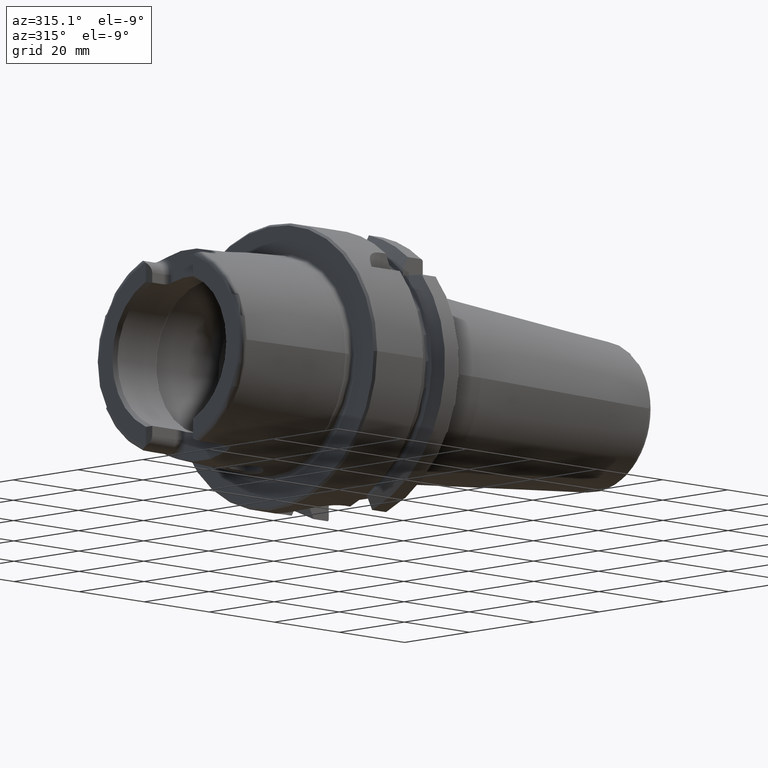
[diagram: clean part render]
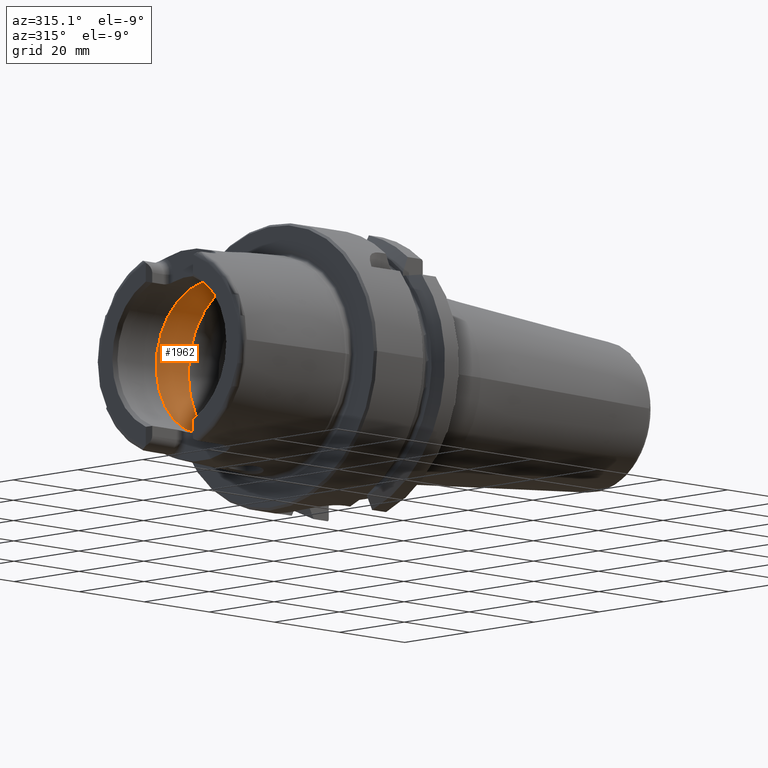
[diagram: same view with one face highlighted and labeled with its STEP entity id]
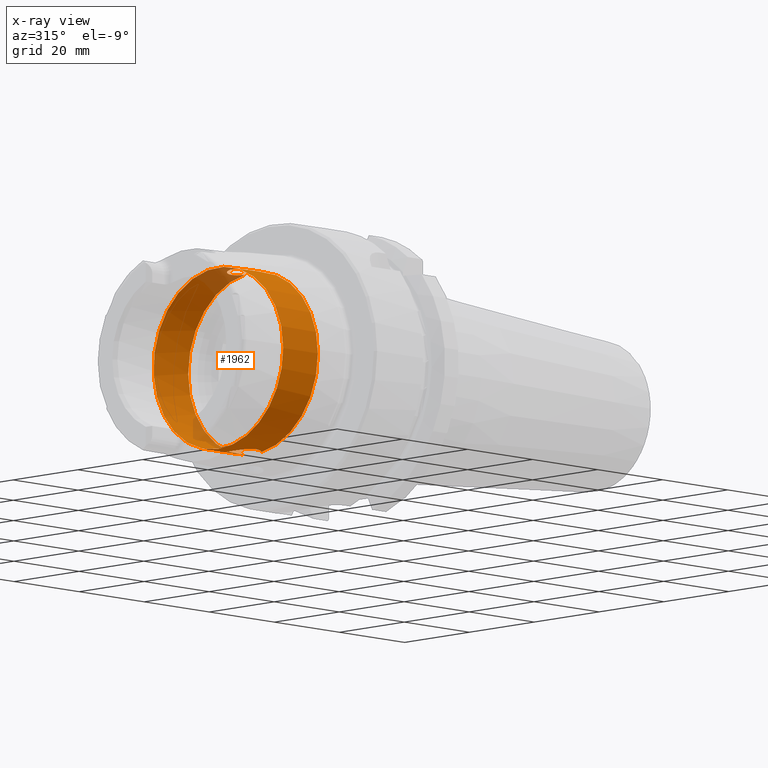
[diagram: x-ray of the same camera — body ghosted, the highlighted face saturated]
A machine part, auxiliary view. The second image highlights one B-rep face of the part: STEP entity #1962.
The next image is the same camera in x-ray: the body ghosted, the highlighted face saturated — about 8% of this face is hidden behind the body in this view.
In plain terms, the highlighted cylindrical surface (bore or boss wall) has radius 20 mm, axis along (-1, 0, 0).
Its self-contained STEP definition (entity closure, byte-faithful):
#50=B_SPLINE_CURVE_WITH_KNOTS('',3,(#3469,#3470,#3471,#3472,#3473,#3474,
#3475,#3476,#3477,#3478,#3479,#3480,#3481,#3482,#3483,#3484,#3485,#3486,
#3487,#3488,#3489,#3490,#3491,#3492,#3493,#3494,#3495,#3496,#3497,#3498,
#3499),.UNSPECIFIED.,.F.,.F.,(4,2,2,2,2,2,2,2,2,2,2,3,2,2,4),(-1.43107314142755,
-1.4161913421645,-1.27456976724955,-1.1329481923346,-0.991326617419658,
-0.849705042504712,-0.708089569336007,-0.566474096167302,-0.424858622998598,
-0.283243149829893,-0.141621574914946,0.,0.141621574914946,0.283243149829893,
0.298124949100151),.UNSPECIFIED.);
#55=B_SPLINE_CURVE_WITH_KNOTS('',3,(#3638,#3639,#3640,#3641,#3642,#3643,
#3644,#3645,#3646,#3647,#3648,#3649,#3650,#3651,#3652,#3653,#3654,#3655,
#3656,#3657,#3658,#3659,#3660,#3661,#3662,#3663,#3664,#3665,#3666,#3667,
#3668),.UNSPECIFIED.,.F.,.F.,(4,2,2,3,2,2,2,2,2,2,2,2,2,2,4),(-0.298124949092949,
-0.283243149829893,-0.141621574914946,0.,0.141621574914946,0.283243149829893,
0.424858622998598,0.566474096167302,0.708089569336007,0.849705042504712,
0.991326617419658,1.1329481923346,1.27456976724955,1.4161913421645,1.43107314143475),
 .UNSPECIFIED.);
#184=CYLINDRICAL_SURFACE('',#2144,20.);
#237=FACE_OUTER_BOUND('',#359,.T.);
#359=EDGE_LOOP('',(#1463,#1464,#1465,#1466,#1467,#1468,#1469,#1470,#1471));
#492=LINE('',#3684,#598);
#598=VECTOR('',#2511,20.);
#699=CIRCLE('',#2145,20.);
#700=CIRCLE('',#2146,20.);
#701=CIRCLE('',#2147,20.);
#702=CIRCLE('',#2148,20.);
#703=CIRCLE('',#2149,20.);
#868=VERTEX_POINT('',#3455);
#869=VERTEX_POINT('',#3468);
#872=VERTEX_POINT('',#3623);
#874=VERTEX_POINT('',#3637);
#875=VERTEX_POINT('',#3681);
#876=VERTEX_POINT('',#3683);
#877=VERTEX_POINT('',#3685);
#1093=EDGE_CURVE('',#869,#868,#50,.T.);
#1099=EDGE_CURVE('',#874,#872,#55,.T.);
#1102=EDGE_CURVE('',#875,#872,#699,.T.);
#1103=EDGE_CURVE('',#875,#876,#492,.T.);
#1104=EDGE_CURVE('',#876,#877,#700,.T.);
#1105=EDGE_CURVE('',#877,#876,#701,.T.);
#1106=EDGE_CURVE('',#869,#875,#702,.T.);
#1107=EDGE_CURVE('',#874,#868,#703,.T.);
#1463=ORIENTED_EDGE('',*,*,#1099,.T.);
#1464=ORIENTED_EDGE('',*,*,#1102,.F.);
#1465=ORIENTED_EDGE('',*,*,#1103,.T.);
#1466=ORIENTED_EDGE('',*,*,#1104,.T.);
#1467=ORIENTED_EDGE('',*,*,#1105,.T.);
#1468=ORIENTED_EDGE('',*,*,#1103,.F.);
#1469=ORIENTED_EDGE('',*,*,#1106,.F.);
#1470=ORIENTED_EDGE('',*,*,#1093,.T.);
#1471=ORIENTED_EDGE('',*,*,#1107,.F.);
#1962=ADVANCED_FACE('',(#237),#184,.F.);
#2144=AXIS2_PLACEMENT_3D('',#3680,#2507,#2508);
#2145=AXIS2_PLACEMENT_3D('',#3682,#2509,#2510);
#2146=AXIS2_PLACEMENT_3D('',#3686,#2512,#2513);
#2147=AXIS2_PLACEMENT_3D('',#3687,#2514,#2515);
#2148=AXIS2_PLACEMENT_3D('',#3688,#2516,#2517);
#2149=AXIS2_PLACEMENT_3D('',#3689,#2518,#2519);
#2507=DIRECTION('center_axis',(-1.,0.,0.));
#2508=DIRECTION('ref_axis',(0.,1.,0.));
#2509=DIRECTION('center_axis',(-1.,0.,0.));
#2510=DIRECTION('ref_axis',(0.,0.,1.));
#2511=DIRECTION('',(-1.,0.,0.));
#2512=DIRECTION('center_axis',(-1.,0.,0.));
#2513=DIRECTION('ref_axis',(0.,0.,1.));
#2514=DIRECTION('center_axis',(-1.,0.,0.));
#2515=DIRECTION('ref_axis',(0.,0.,1.));
#2516=DIRECTION('center_axis',(-1.,0.,0.));
#2517=DIRECTION('ref_axis',(0.,0.,1.));
#2518=DIRECTION('center_axis',(-1.,0.,0.));
#2519=DIRECTION('ref_axis',(0.,0.,1.));
#3455=CARTESIAN_POINT('',(-6.2449979983984,2.54410376580264,-19.8375284758165));
#3468=CARTESIAN_POINT('',(-6.2449979983984,-2.54410376580264,-19.8375284758165));
#3469=CARTESIAN_POINT('Ctrl Pts',(-6.2449979983984,-2.54410376580264,-19.8375284758165));
#3470=CARTESIAN_POINT('Ctrl Pts',(-6.27894943420456,-2.58086966932454,-19.8328133585216));
#3471=CARTESIAN_POINT('Ctrl Pts',(-6.31342869219743,-2.61672955109653,-19.8281105439642));
#3472=CARTESIAN_POINT('Ctrl Pts',(-6.68067160381732,-2.98397246271642,-19.7789868876592));
#3473=CARTESIAN_POINT('Ctrl Pts',(-7.10159661632629,-3.27238367725626,-19.731429741537));
#3474=CARTESIAN_POINT('Ctrl Pts',(-8.0251754070192,-3.65542701546408,-19.6640704965084));
#3475=CARTESIAN_POINT('Ctrl Pts',(-8.52792808361685,-3.75,-19.6452920568771));
#3476=CARTESIAN_POINT('Ctrl Pts',(-9.47207191638316,-3.75,-19.6452920568771));
#3477=CARTESIAN_POINT('Ctrl Pts',(-9.97482459298081,-3.65542701546408,-19.6640704965084));
#3478=CARTESIAN_POINT('Ctrl Pts',(-10.8984033836737,-3.27238367725626,-19.731429741537));
#3479=CARTESIAN_POINT('Ctrl Pts',(-11.3193283961827,-2.98397246271642,-19.7789868876592));
#3480=CARTESIAN_POINT('Ctrl Pts',(-11.9839581446669,-2.31934271423217,-19.8678900149943));
#3481=CARTESIAN_POINT('Ctrl Pts',(-12.2723805817074,-1.89841159537053,-19.9150796801946));
#3482=CARTESIAN_POINT('Ctrl Pts',(-12.6554320620407,-0.974811677040414,
-19.9815942165963));
#3483=CARTESIAN_POINT('Ctrl Pts',(-12.75,-0.472051577229017,-20.));
#3484=CARTESIAN_POINT('Ctrl Pts',(-12.75,0.472051577229015,-20.));
#3485=CARTESIAN_POINT('Ctrl Pts',(-12.6554320620407,0.974811677040408,-19.9815942165963));
#3486=CARTESIAN_POINT('Ctrl Pts',(-12.2723805817074,1.89841159537052,-19.9150796801946));
#3487=CARTESIAN_POINT('Ctrl Pts',(-11.9839581446669,2.31934271423217,-19.8678900149943));
#3488=CARTESIAN_POINT('Ctrl Pts',(-11.3193283961827,2.98397246271642,-19.7789868876592));
#3489=CARTESIAN_POINT('Ctrl Pts',(-10.8984033836737,3.27238367725626,-19.731429741537));
#3490=CARTESIAN_POINT('Ctrl Pts',(-9.97482459298081,3.65542701546408,-19.6640704965084));
#3491=CARTESIAN_POINT('Ctrl Pts',(-9.47207191638316,3.75,-19.6452920568771));
#3492=CARTESIAN_POINT('Ctrl Pts',(-9.,3.75,-19.6452920568771));
#3493=CARTESIAN_POINT('Ctrl Pts',(-8.52792808361685,3.75,-19.6452920568771));
#3494=CARTESIAN_POINT('Ctrl Pts',(-8.0251754070192,3.65542701546408,-19.6640704965084));
#3495=CARTESIAN_POINT('Ctrl Pts',(-7.10159661632629,3.27238367725626,-19.731429741537));
#3496=CARTESIAN_POINT('Ctrl Pts',(-6.68067160381732,2.98397246271642,-19.7789868876592));
#3497=CARTESIAN_POINT('Ctrl Pts',(-6.31342869218053,2.61672955107963,-19.8281105439665));
#3498=CARTESIAN_POINT('Ctrl Pts',(-6.27894943419011,2.5808696693089,-19.8328133585236));
#3499=CARTESIAN_POINT('Ctrl Pts',(-6.2449979983984,2.54410376580264,-19.8375284758165));
#3623=CARTESIAN_POINT('',(-6.2449979983984,-2.54410376580264,19.8375284758165));
#3637=CARTESIAN_POINT('',(-6.2449979983984,2.54410376580264,19.8375284758165));
#3638=CARTESIAN_POINT('Ctrl Pts',(-6.2449979983984,2.54410376580264,19.8375284758165));
#3639=CARTESIAN_POINT('Ctrl Pts',(-6.27894943420456,2.58086966932454,19.8328133585216));
#3640=CARTESIAN_POINT('Ctrl Pts',(-6.31342869219742,2.61672955109653,19.8281105439642));
#3641=CARTESIAN_POINT('Ctrl Pts',(-6.68067160381731,2.98397246271642,19.7789868876592));
#3642=CARTESIAN_POINT('Ctrl Pts',(-7.10159661632629,3.27238367725626,19.731429741537));
#3643=CARTESIAN_POINT('Ctrl Pts',(-8.02517540701919,3.65542701546408,19.6640704965084));
#3644=CARTESIAN_POINT('Ctrl Pts',(-8.52792808361684,3.75,19.6452920568771));
#3645=CARTESIAN_POINT('Ctrl Pts',(-9.,3.75,19.6452920568771));
#3646=CARTESIAN_POINT('Ctrl Pts',(-9.47207191638315,3.75,19.6452920568771));
#3647=CARTESIAN_POINT('Ctrl Pts',(-9.97482459298081,3.65542701546408,19.6640704965084));
#3648=CARTESIAN_POINT('Ctrl Pts',(-10.8984033836737,3.27238367725626,19.731429741537));
#3649=CARTESIAN_POINT('Ctrl Pts',(-11.3193283961827,2.98397246271642,19.7789868876592));
#3650=CARTESIAN_POINT('Ctrl Pts',(-11.9839581446669,2.31934271423217,19.8678900149943));
#3651=CARTESIAN_POINT('Ctrl Pts',(-12.2723805817074,1.89841159537052,19.9150796801946));
#3652=CARTESIAN_POINT('Ctrl Pts',(-12.6554320620407,0.97481167704041,19.9815942165963));
#3653=CARTESIAN_POINT('Ctrl Pts',(-12.75,0.472051577229015,20.));
#3654=CARTESIAN_POINT('Ctrl Pts',(-12.75,-0.472051577229017,20.));
#3655=CARTESIAN_POINT('Ctrl Pts',(-12.6554320620407,-0.974811677040414,
19.9815942165963));
#3656=CARTESIAN_POINT('Ctrl Pts',(-12.2723805817074,-1.89841159537053,19.9150796801946));
#3657=CARTESIAN_POINT('Ctrl Pts',(-11.9839581446669,-2.31934271423217,19.8678900149943));
#3658=CARTESIAN_POINT('Ctrl Pts',(-11.3193283961827,-2.98397246271642,19.7789868876592));
#3659=CARTESIAN_POINT('Ctrl Pts',(-10.8984033836737,-3.27238367725626,19.731429741537));
#3660=CARTESIAN_POINT('Ctrl Pts',(-9.9748245929808,-3.65542701546408,19.6640704965084));
#3661=CARTESIAN_POINT('Ctrl Pts',(-9.47207191638315,-3.75,19.6452920568771));
#3662=CARTESIAN_POINT('Ctrl Pts',(-8.52792808361684,-3.75,19.6452920568771));
#3663=CARTESIAN_POINT('Ctrl Pts',(-8.02517540701919,-3.65542701546408,19.6640704965084));
#3664=CARTESIAN_POINT('Ctrl Pts',(-7.10159661632629,-3.27238367725626,19.731429741537));
#3665=CARTESIAN_POINT('Ctrl Pts',(-6.68067160381731,-2.98397246271642,19.7789868876592));
#3666=CARTESIAN_POINT('Ctrl Pts',(-6.31342869218052,-2.61672955107963,19.8281105439665));
#3667=CARTESIAN_POINT('Ctrl Pts',(-6.27894943419011,-2.5808696693089,19.8328133585236));
#3668=CARTESIAN_POINT('Ctrl Pts',(-6.2449979983984,-2.54410376580264,19.8375284758165));
#3680=CARTESIAN_POINT('Origin',(-11.5812812165501,0.,0.));
#3681=CARTESIAN_POINT('',(-6.2449979983984,-20.,2.44929359829471E-15));
#3682=CARTESIAN_POINT('Origin',(-6.2449979983984,0.,0.));
#3683=CARTESIAN_POINT('',(-16.9175644347018,-20.,2.44929359829471E-15));
#3684=CARTESIAN_POINT('',(-11.5812812165501,-20.,2.44929359829471E-15));
#3685=CARTESIAN_POINT('',(-16.9175644347018,-2.44929359829471E-15,-20.));
#3686=CARTESIAN_POINT('Origin',(-16.9175644347018,0.,0.));
#3687=CARTESIAN_POINT('Origin',(-16.9175644347018,0.,0.));
#3688=CARTESIAN_POINT('Origin',(-6.2449979983984,0.,0.));
#3689=CARTESIAN_POINT('Origin',(-6.2449979983984,0.,0.));